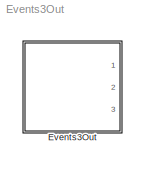
MODEL Events3Out
KIND model
CONFIG AbsTol = auto
CONFIG FixedStep = auto
CONFIG MaxStep = auto
CONFIG MinStep = auto
CONFIG RelTol = 1e-3
CONFIG Solver = ode45
CONFIG SolverMode = Auto
CONFIG StartTime = 0.0
CONFIG StopTime = 10.0
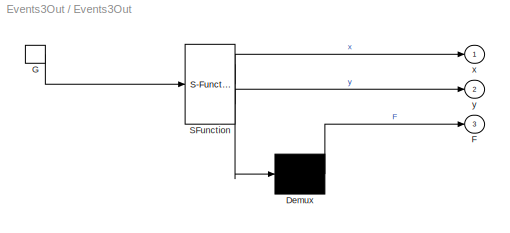
BLOCK [SubSystem] Events3Out
  MaskDescription = Stateflow diagram
  MaskDisplay = plot(sf('Private','sfblk','xIcon'),sf('Private','sfblk','yIcon'));text(0.5,0,sf('Private', 'sfblk', 'tIcon'),'HorizontalAl','Center','VerticalAl','Bottom');
  MaskIconFrame = off
  MaskIconOpaque = off
  MaskIconRotate = none
  MaskIconUnits = autoscale
  MaskSelfModifiable = on
  MaskType = Stateflow
  Ports = [0, 3, 0, 1]
  TreatAsAtomicUnit = off
BLOCK [Demux] Events3Out/ Demux 
  Outputs = 1
  Ports = [1, 1]
BLOCK [S-Function] Events3Out/ SFunction 
  FunctionName = sf_sfun
  PortCounts = [1 3]
  Ports = [1, 3]
  Tag = Stateflow S-Function Events3Out 1
BLOCK [Outport] Events3Out/F
  Port = 3
BLOCK [TriggerPort] Events3Out/G
  Ports = [0, 1]
  ShowOutputPort = on
BLOCK [Outport] Events3Out/x
BLOCK [Outport] Events3Out/y
  Port = 2
LINE Events3Out/ Demux :1 -> Events3Out/F:1
LINE Events3Out/ SFunction :1 -> Events3Out/ Demux :1
LINE Events3Out/ SFunction :2 -> Events3Out/x:1
LINE Events3Out/ SFunction :3 -> Events3Out/y:1
LINE Events3Out/G:1 -> Events3Out/ SFunction :1
CHART Events3Out states=6 transitions=6
  STATE_LABEL 'A/\\nen: x+=10;'
  STATE_LABEL 'B/\\nen:x+=1000;'
  STATE_LABEL 'C/\\nen: y+=10;'
  STATE_LABEL 'D/\\nen: y+=1000;'
  STATE_LABEL 'TOP1'
  STATE_LABEL 'TOP2'
